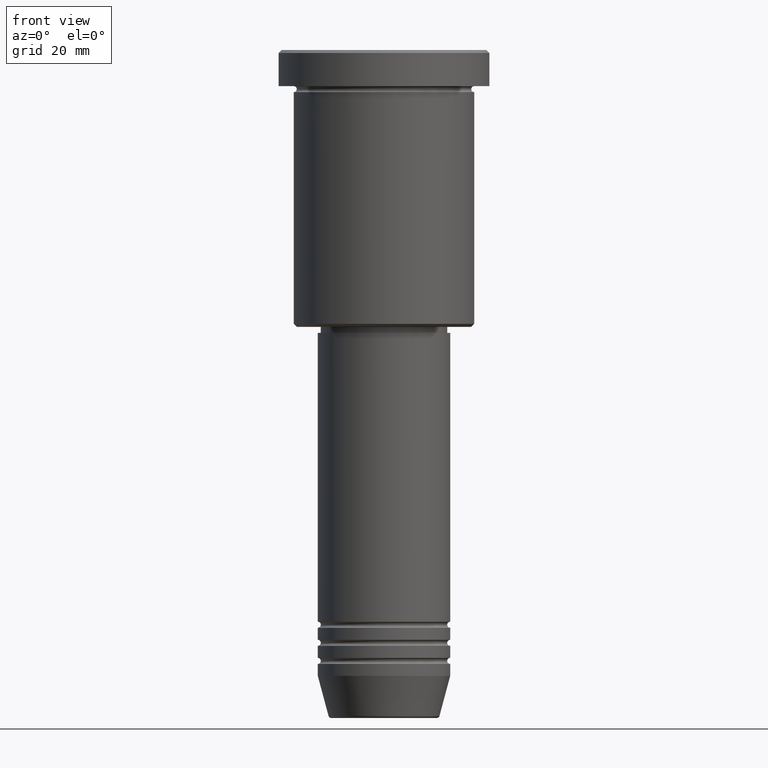
[diagram: clean part render]
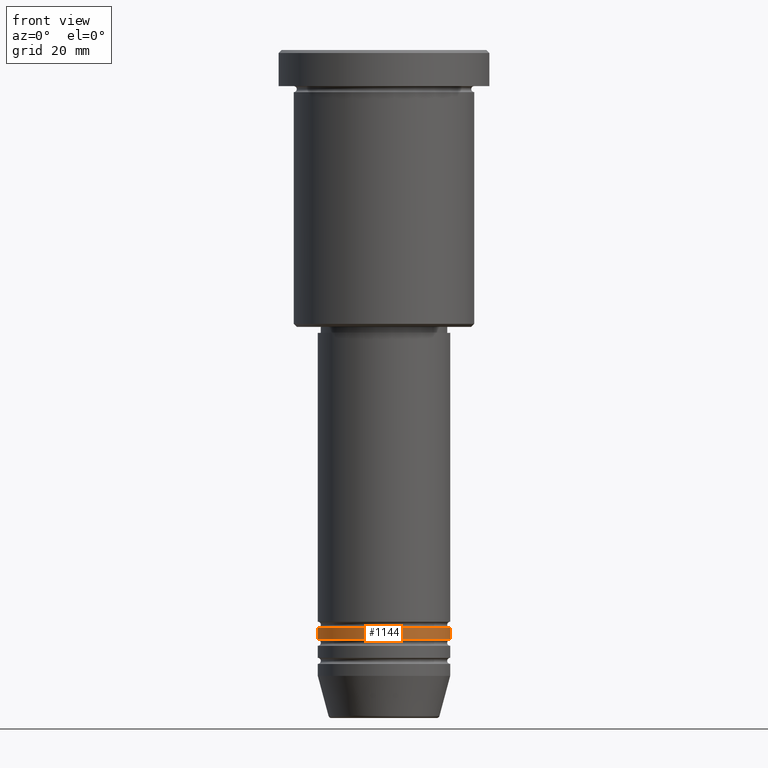
[diagram: same view with one face highlighted and labeled with its STEP entity id]
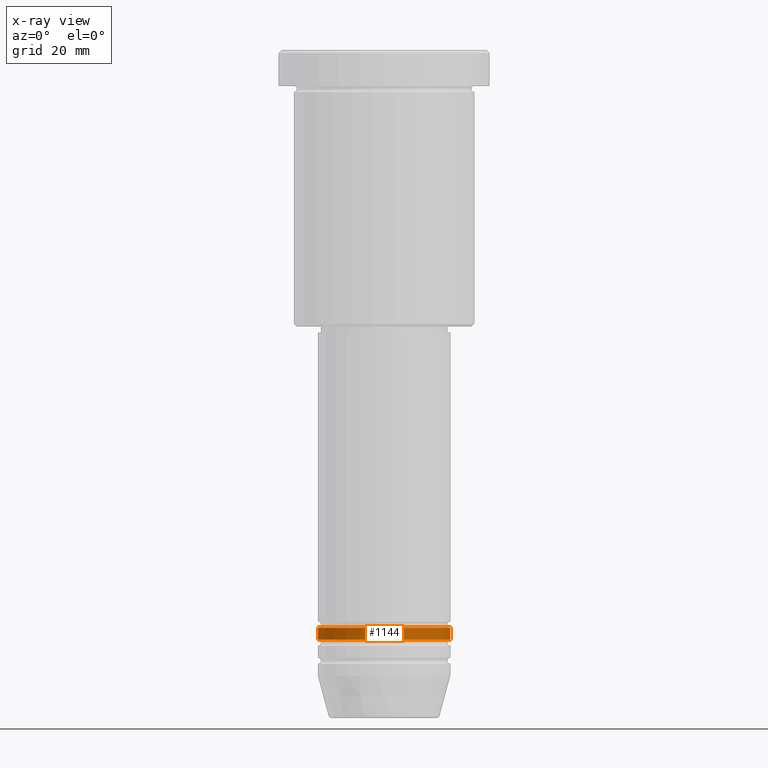
[diagram: x-ray of the same camera — body ghosted, the highlighted face saturated]
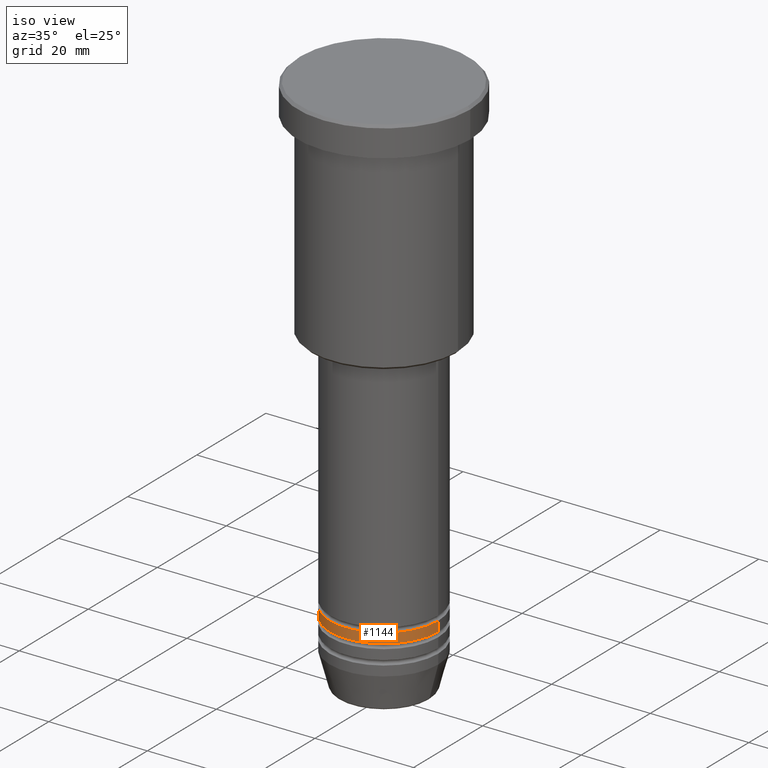
[diagram: same view with one face highlighted and labeled with its STEP entity id]
A machine part, front view. The second image highlights one B-rep face of the part: STEP entity #1144.
The next image is the same camera in x-ray: the body ghosted, the highlighted face saturated — about 0% of this face is hidden behind the body in this view.
A second angle (iso view) of the same face is appended — the face is thin or edge-on in the first view.
In plain terms, the highlighted cylindrical surface (partial cylindrical patch) has radius 11 mm, axis along (-0, -0, 1).
Its self-contained STEP definition (entity closure, byte-faithful):
#15 = AXIS2_PLACEMENT_3D ( 'NONE', #1019, #100, #1176 ) ;
#94 = DIRECTION ( 'NONE',  ( -0.000000000000000000, -0.000000000000000000, 1.000000000000000000 ) ) ;
#96 = DIRECTION ( 'NONE',  ( 1.000000000000000000, 0.000000000000000000, 0.000000000000000000 ) ) ;
#100 = DIRECTION ( 'NONE',  ( -0.000000000000000000, -0.000000000000000000, 1.000000000000000000 ) ) ;
#124 = EDGE_CURVE ( 'NONE', #244, #1035, #1137, .T. ) ;
#244 = VERTEX_POINT ( 'NONE', #1150 ) ;
#259 = EDGE_LOOP ( 'NONE', ( #650, #560, #925, #660 ) ) ;
#374 = CARTESIAN_POINT ( 'NONE',  ( 11.00000000000000000, 0.000000000000000000, 0.000000000000000000 ) ) ;
#443 = FACE_OUTER_BOUND ( 'NONE', #259, .T. ) ;
#458 = EDGE_CURVE ( 'NONE', #468, #515, #483, .T. ) ;
#468 = VERTEX_POINT ( 'NONE', #1086 ) ;
#479 = CARTESIAN_POINT ( 'NONE',  ( 0.000000000000000000, 0.000000000000000000, -95.99999999999998579 ) ) ;
#483 = CIRCLE ( 'NONE', #1119, 11.00000000000000000 ) ;
#515 = VERTEX_POINT ( 'NONE', #784 ) ;
#560 = ORIENTED_EDGE ( 'NONE', *, *, #458, .T. ) ;
#595 = CARTESIAN_POINT ( 'NONE',  ( 0.000000000000000000, 0.000000000000000000, -97.99999999999997158 ) ) ;
#606 = DIRECTION ( 'NONE',  ( 1.000000000000000000, 0.000000000000000000, 0.000000000000000000 ) ) ;
#650 = ORIENTED_EDGE ( 'NONE', *, *, #928, .F. ) ;
#660 = ORIENTED_EDGE ( 'NONE', *, *, #124, .F. ) ;
#730 = CARTESIAN_POINT ( 'NONE',  ( -11.00000000000000000, 1.347111479062088405E-15, 0.000000000000000000 ) ) ;
#743 = LINE ( 'NONE', #374, #1123 ) ;
#757 = DIRECTION ( 'NONE',  ( -0.000000000000000000, -0.000000000000000000, 1.000000000000000000 ) ) ;
#767 = DIRECTION ( 'NONE',  ( -0.000000000000000000, -0.000000000000000000, 1.000000000000000000 ) ) ;
#784 = CARTESIAN_POINT ( 'NONE',  ( 11.00000000000000000, 0.000000000000000000, -97.99999999999997158 ) ) ;
#787 = AXIS2_PLACEMENT_3D ( 'NONE', #479, #757, #96 ) ;
#824 = LINE ( 'NONE', #730, #972 ) ;
#920 = CYLINDRICAL_SURFACE ( 'NONE', #15, 11.00000000000000000 ) ;
#925 = ORIENTED_EDGE ( 'NONE', *, *, #1155, .T. ) ;
#928 = EDGE_CURVE ( 'NONE', #468, #244, #824, .T. ) ;
#972 = VECTOR ( 'NONE', #767, 1000.000000000000000 ) ;
#977 = DIRECTION ( 'NONE',  ( -0.000000000000000000, -0.000000000000000000, 1.000000000000000000 ) ) ;
#1019 = CARTESIAN_POINT ( 'NONE',  ( 0.000000000000000000, 0.000000000000000000, 0.000000000000000000 ) ) ;
#1035 = VERTEX_POINT ( 'NONE', #1080 ) ;
#1080 = CARTESIAN_POINT ( 'NONE',  ( 11.00000000000000000, 0.000000000000000000, -95.99999999999998579 ) ) ;
#1086 = CARTESIAN_POINT ( 'NONE',  ( -11.00000000000000000, 1.347111479062088405E-15, -97.99999999999997158 ) ) ;
#1119 = AXIS2_PLACEMENT_3D ( 'NONE', #595, #977, #606 ) ;
#1123 = VECTOR ( 'NONE', #94, 1000.000000000000000 ) ;
#1137 = CIRCLE ( 'NONE', #787, 11.00000000000000000 ) ;
#1144 = ADVANCED_FACE ( 'NONE', ( #443 ), #920, .T. ) ;
#1150 = CARTESIAN_POINT ( 'NONE',  ( -11.00000000000000000, 1.347111479062088405E-15, -95.99999999999998579 ) ) ;
#1155 = EDGE_CURVE ( 'NONE', #515, #1035, #743, .T. ) ;
#1176 = DIRECTION ( 'NONE',  ( 1.000000000000000000, 0.000000000000000000, 0.000000000000000000 ) ) ;